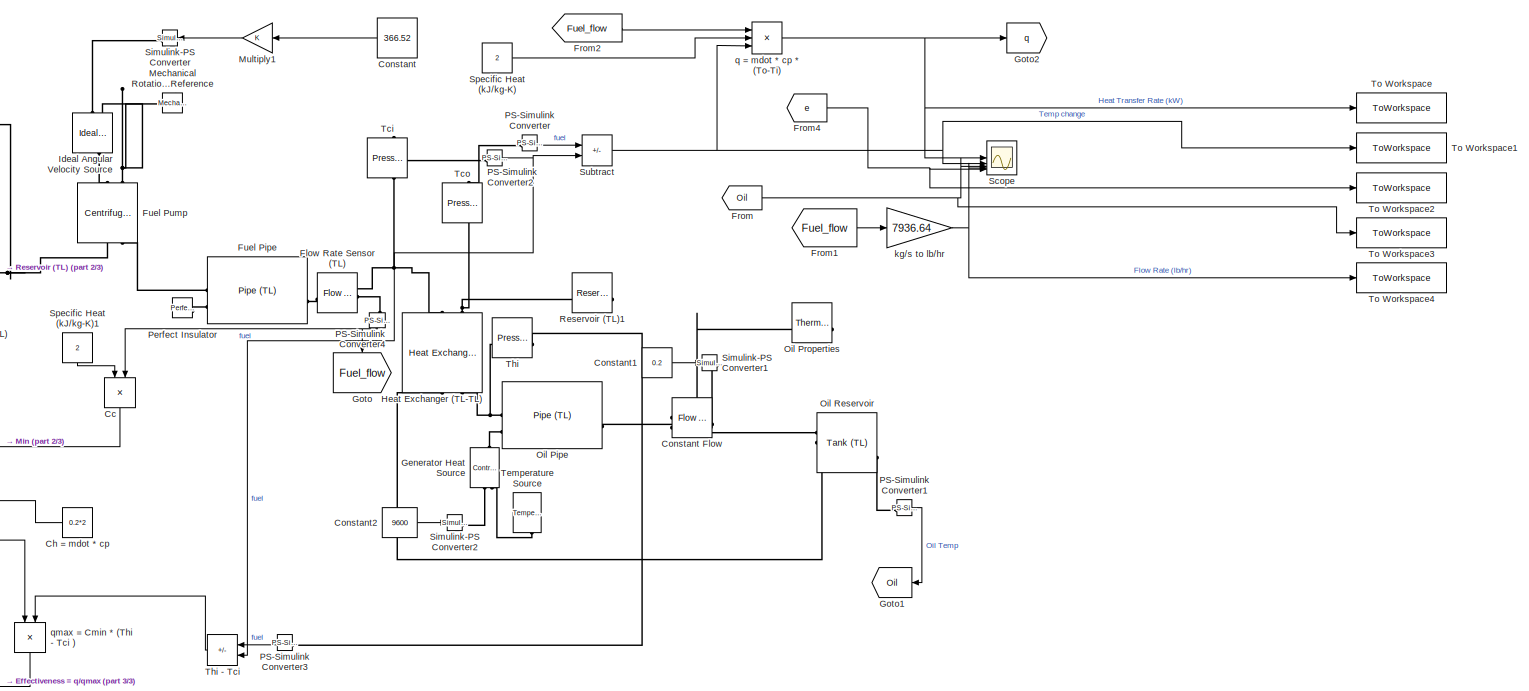
[diagram: root canvas - part 1/3, most of the canvas]
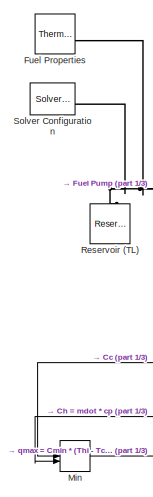
[diagram: root canvas - part 2/3, middle left region]
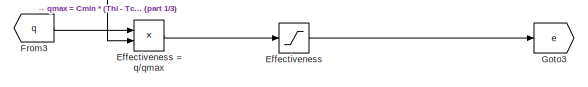
[diagram: root canvas - part 3/3, bottom left region]
MODEL slx_641545bf2c4e
KIND model
CONFIG AbsTol = auto
CONFIG EnableMultiTasking = off
CONFIG FixedStep = auto
CONFIG MaxStep = auto
CONFIG MinStep = auto
CONFIG RelTol = 1e-3
CONFIG SampleTimeConstraint = Unconstrained
CONFIG SolverName = VariableStepAuto
CONFIG StartTime = 0.0
CONFIG StopTime = 10800
BLOCK [Product] Cc
  NameLocation = left
BLOCK [Constant] Ch = mdot * cp
  NameLocation = top
  Value = 0.2*2
BLOCK [Constant] Constant
  NameLocation = top
  Value = 366.52
BLOCK [Reference] Constant Flow  REF=fl_lib/Thermal Liquid/Sources/Flow Rate Source
(TL)
  NameLocation = top
  SourceBlock = fl_lib/Thermal Liquid/Sources/Flow Rate Source\n(TL)
  SourceType = Flow Rate Source\n(TL)
BLOCK [Constant] Constant1
  Value = 0.2
BLOCK [Constant] Constant2
  Value = 9600
BLOCK [Saturate] Effectiveness
  LowerLimit = 0
  UpperLimit = 1
BLOCK [Product] Effectiveness = q//qmax 
  Inputs = */
BLOCK [Reference] Flow Rate Sensor (TL)  REF=fl_lib/Thermal Liquid/Sensors/Flow Rate Sensor
(TL)
  SourceBlock = fl_lib/Thermal Liquid/Sensors/Flow Rate Sensor\n(TL)
  SourceType = Flow Rate Sensor\n(TL)
BLOCK [From] From
  GotoTag = Oil
BLOCK [From] From1
  GotoTag = Fuel_flow
BLOCK [From] From2
  GotoTag = Fuel_flow
BLOCK [From] From3
  GotoTag = q
BLOCK [From] From4
  GotoTag = e
BLOCK [Reference] Fuel Pipe  REF=SimscapeFluids_lib/Thermal Liquid/Pipes & Fittings/Pipe (TL)
  NameLocation = top
  SourceBlock = SimscapeFluids_lib/Thermal Liquid/Pipes & Fittings/Pipe (TL)
  SourceType = Pipe (TL)
BLOCK [Reference] Fuel Properties  REF=SimscapeFluids_lib/Thermal Liquid/Utilities/Thermal Liquid
Properties (TL)
  NameLocation = top
  SourceBlock = SimscapeFluids_lib/Thermal Liquid/Utilities/Thermal Liquid\nProperties (TL)
  SourceType = Thermal Liquid\nProperties (TL)
BLOCK [Reference] Fuel Pump   REF=SimscapeFluids_lib/Thermal Liquid/Pumps & Motors/Centrifugal Pump
(TL)
  NameLocation = right
  SourceBlock = SimscapeFluids_lib/Thermal Liquid/Pumps & Motors/Centrifugal Pump\n(TL)
  SourceType = Centrifugal Pump\n(TL)
BLOCK [Reference] Generator Heat Source  REF=fl_lib/Thermal/Thermal Sources/Controlled Heat Flow
Rate Source
  NameLocation = right
  SourceBlock = fl_lib/Thermal/Thermal Sources/Controlled Heat Flow\nRate Source
  SourceType = Controlled Heat Flow\nRate Source
BLOCK [Goto] Goto
  GotoTag = Fuel_flow
  NameLocation = left
BLOCK [Goto] Goto1
  GotoTag = Oil
  NameLocation = top
BLOCK [Goto] Goto2
  GotoTag = q
BLOCK [Goto] Goto3
  GotoTag = e
BLOCK [Reference] Heat Exchanger (TL-TL)  REF=SimscapeFluids_lib/Heat Exchangers/Thermal Liquid/Heat Exchanger
(TL-TL)
  NameLocation = right
  SourceBlock = SimscapeFluids_lib/Heat Exchangers/Thermal Liquid/Heat Exchanger\n(TL-TL)
  SourceType = Heat Exchanger\n(TL-TL)
BLOCK [Reference] Ideal Angular Velocity Source  REF=fl_lib/Mechanical/Mechanical Sources/Ideal Angular
Velocity Source
  NameLocation = left
  SourceBlock = fl_lib/Mechanical/Mechanical Sources/Ideal Angular\nVelocity Source
  SourceType = Ideal Angular\nVelocity Source
BLOCK [Reference] Mechanical Rotational Reference  REF=fl_lib/Mechanical/Rotational Elements/Mechanical
Rotational Reference
  NameLocation = right
  SourceBlock = fl_lib/Mechanical/Rotational Elements/Mechanical\nRotational Reference
  SourceType = Mechanical\nRotational Reference
BLOCK [MinMax] Min
  Inputs = 2
BLOCK [Gain] Multiply1
  NameLocation = top
BLOCK [Reference] Oil Pipe  REF=SimscapeFluids_lib/Thermal Liquid/Pipes & Fittings/Pipe (TL)
  NameLocation = top
  SourceBlock = SimscapeFluids_lib/Thermal Liquid/Pipes & Fittings/Pipe (TL)
  SourceType = Pipe (TL)
BLOCK [Reference] Oil Properties   REF=SimscapeFluids_lib/Thermal Liquid/Utilities/Thermal Liquid
Properties (TL)
  NameLocation = top
  SourceBlock = SimscapeFluids_lib/Thermal Liquid/Utilities/Thermal Liquid\nProperties (TL)
  SourceType = Thermal Liquid\nProperties (TL)
BLOCK [Reference] Oil Reservoir  REF=SimscapeFluids_lib/Thermal Liquid/Tanks & Accumulators/Tank (TL)
  NameLocation = right
  SourceBlock = SimscapeFluids_lib/Thermal Liquid/Tanks & Accumulators/Tank (TL)
  SourceType = Tank (TL)
BLOCK [Reference] PS-Simulink Converter  REF=nesl_utility/PS-Simulink
Converter
  SourceBlock = nesl_utility/PS-Simulink\nConverter
  SourceType = PS-Simulink\nConverter
BLOCK [Reference] PS-Simulink Converter1  REF=nesl_utility/PS-Simulink
Converter
  SourceBlock = nesl_utility/PS-Simulink\nConverter
  SourceType = PS-Simulink\nConverter
BLOCK [Reference] PS-Simulink Converter2  REF=nesl_utility/PS-Simulink
Converter
  SourceBlock = nesl_utility/PS-Simulink\nConverter
  SourceType = PS-Simulink\nConverter
BLOCK [Reference] PS-Simulink Converter3  REF=nesl_utility/PS-Simulink
Converter
  NameLocation = top
  SourceBlock = nesl_utility/PS-Simulink\nConverter
  SourceType = PS-Simulink\nConverter
BLOCK [Reference] PS-Simulink Converter4  REF=nesl_utility/PS-Simulink
Converter
  NameLocation = left
  SourceBlock = nesl_utility/PS-Simulink\nConverter
  SourceType = PS-Simulink\nConverter
BLOCK [Reference] Perfect Insulator  REF=fl_lib/Thermal/Thermal Elements/Perfect Insulator
  SourceBlock = fl_lib/Thermal/Thermal Elements/Perfect Insulator
  SourceType = Perfect Insulator
BLOCK [Reference] Reservoir (TL)  REF=fl_lib/Thermal Liquid/Elements/Reservoir (TL)
  NameLocation = right
  SourceBlock = fl_lib/Thermal Liquid/Elements/Reservoir (TL)
  SourceType = Reservoir (TL)
BLOCK [Reference] Reservoir (TL)1  REF=fl_lib/Thermal Liquid/Elements/Reservoir (TL)
  NameLocation = top
  SourceBlock = fl_lib/Thermal Liquid/Elements/Reservoir (TL)
  SourceType = Reservoir (TL)
BLOCK [Scope] Scope
  ActiveDisplayYMaximum = 37.123225295399415
  ActiveDisplayYMinimum = -19.375781020772656
  ContainerLayout = {"WindowBounds":[1171,1366,336,759],"gridDimensions":{"w":1,"h":1},"tileCount":1,"tileCoverage":1,"columnWeights":1,"rowWeights":1,"tileOccupancy":{"children":[{"id":"/Scope1"},{"id":"/Scope"}]}}
  Floating = off
  GraphicalSettings = {"Style":{"BackgroundColor":[0.12941176470588237,0.12941176470588237,0.12941176470588237],"AxesColor":[0.07058823529411765,0.07058823529411765,0.07058823529411765],"LabelsColor":[0.8509803921568627,0.8509803921568627,0.8509803921568627],"PreserveColors":false,"Visible":[true,true,true,true,true],"LineStyle":["-","-","-","-","-"],"LineWidth":[1.5,1.5,1.5,1.5,1.5],"BarWidth":[0.9,0.9,0.9,0.9,0.9],"L...<+2517ch>
  MultipleDisplayCache = [{"MaxYLimMag":14835.183964383157,"MaxYLimReal":37.123225295399415,"MinYLimMag":0,"MinYLimReal":-19.375781020772656,"PlotAsMagnitudePhase":false,"ShowGrid":true,"ShowLegend":true,"Title":"%<SignalLabel>","YLabel":""}]
  NumInputPorts = 5
  ShowLegend = on
  Visible = on
  WasSavedAsWebScope = on
  WindowPosition = [1171.000000,64.000000,342.000000,768.000000,]
BLOCK [Reference] Simulink-PS Converter  REF=nesl_utility/Simulink-PS
Converter
  NameLocation = top
  SourceBlock = nesl_utility/Simulink-PS\nConverter
  SourceType = Simulink-PS\nConverter
BLOCK [Reference] Simulink-PS Converter1  REF=nesl_utility/Simulink-PS
Converter
  SourceBlock = nesl_utility/Simulink-PS\nConverter
  SourceType = Simulink-PS\nConverter
BLOCK [Reference] Simulink-PS Converter2  REF=nesl_utility/Simulink-PS
Converter
  SourceBlock = nesl_utility/Simulink-PS\nConverter
  SourceType = Simulink-PS\nConverter
BLOCK [Reference] Solver Configuration  REF=nesl_utility/Solver
Configuration
  SourceBlock = nesl_utility/Solver\nConfiguration
  SourceType = Solver\nConfiguration
BLOCK [Constant] Specific Heat (kJ//kg-K)
  Value = 2
BLOCK [Constant] Specific Heat (kJ//kg-K)1
  NameLocation = left
  Value = 2
BLOCK [Sum] Subtract
  IconShape = rectangular
  Inputs = +-
BLOCK [Reference] Tci  REF=fl_lib/Thermal Liquid/Sensors/Pressure &
Temperature Sensor
(TL)
  NameLocation = top
  SourceBlock = fl_lib/Thermal Liquid/Sensors/Pressure &\nTemperature Sensor\n(TL)
  SourceType = Pressure &\nTemperature Sensor\n(TL)
BLOCK [Reference] Tco  REF=fl_lib/Thermal Liquid/Sensors/Pressure &
Temperature Sensor
(TL)
  NameLocation = left
  SourceBlock = fl_lib/Thermal Liquid/Sensors/Pressure &\nTemperature Sensor\n(TL)
  SourceType = Pressure &\nTemperature Sensor\n(TL)
BLOCK [Reference] Temperature Source  REF=fl_lib/Thermal/Thermal Sources/Temperature Source
  NameLocation = left
  SourceBlock = fl_lib/Thermal/Thermal Sources/Temperature Source
  SourceType = Temperature Source
BLOCK [Reference] Thi  REF=fl_lib/Thermal Liquid/Sensors/Pressure &
Temperature Sensor
(TL)
  NameLocation = right
  SourceBlock = fl_lib/Thermal Liquid/Sensors/Pressure &\nTemperature Sensor\n(TL)
  SourceType = Pressure &\nTemperature Sensor\n(TL)
BLOCK [Sum] Thi - Tci 
  IconShape = rectangular
  Inputs = +-
  NameLocation = top
BLOCK [ToWorkspace] To Workspace
  FixptAsFi = on
  MaxDataPoints = 1
  SampleTime = -1
  VariableName = q
BLOCK [ToWorkspace] To Workspace1
  FixptAsFi = on
  MaxDataPoints = 1
  SampleTime = -1
  VariableName = Tchng
BLOCK [ToWorkspace] To Workspace2
  FixptAsFi = on
  MaxDataPoints = 1
  SampleTime = -1
  VariableName = e
BLOCK [ToWorkspace] To Workspace3
  FixptAsFi = on
  MaxDataPoints = 1
  SampleTime = -1
  VariableName = oil
BLOCK [ToWorkspace] To Workspace4
  FixptAsFi = on
  MaxDataPoints = 1
  SampleTime = -1
  VariableName = flow
BLOCK [Gain] kg//s to lb//hr
  Gain = 7936.64
BLOCK [Product] q = mdot * cp * (To-Ti)
  Inputs = 3
  NameLocation = top
BLOCK [Product] qmax = Cmin * (Thi - Tci ) 
  NameLocation = right
LINE Cc:1 -> Min:1
LINE Ch = mdot * cp:1 -> Min:2
LINE Constant1:1 -> Simulink-PS Converter1:1
LINE Constant2:1 -> Simulink-PS Converter2:1
LINE Constant:1 -> Multiply1:1
LINE Effectiveness = q//qmax :1 -> Effectiveness:1
LINE Effectiveness:1 -> Goto3:1
LINE From1:1 -> kg//s to lb//hr:1
LINE From2:1 -> q = mdot * cp * (To-Ti):1
LINE From3:1 -> Effectiveness = q//qmax :1
NET From4:1 -> Scope:5, To Workspace2:1
NET From:1 -> Scope:3, To Workspace3:1
LINE Min:1 -> qmax = Cmin * (Thi - Tci ) :1
LINE Multiply1:1 -> Simulink-PS Converter:1
LINE PS-Simulink Converter1:1 -> Goto1:1
NET PS-Simulink Converter2:1 -> Subtract:2, Thi - Tci :2
LINE PS-Simulink Converter3:1 -> Thi - Tci :1
NET PS-Simulink Converter4:1 -> Cc:2, Goto:1
LINE PS-Simulink Converter:1 -> Subtract:1
LINE Specific Heat (kJ//kg-K)1:1 -> Cc:1
LINE Specific Heat (kJ//kg-K):1 -> q = mdot * cp * (To-Ti):2
NET Subtract:1 -> Scope:2, To Workspace1:1, q = mdot * cp * (To-Ti):3
LINE Thi - Tci :1 -> qmax = Cmin * (Thi - Tci ) :2
NET kg//s to lb//hr:1 -> Scope:4, To Workspace4:1
NET q = mdot * cp * (To-Ti):1 -> Goto2:1, Scope:1, To Workspace:1
LINE qmax = Cmin * (Thi - Tci ) :1 -> Effectiveness = q//qmax :2
PNET net1: Constant Flow:LConn1 -- Oil Properties :RConn1 -- Oil Reservoir:LConn1
PLINE Constant Flow:LConn2 -- Simulink-PS Converter1:RConn1
PLINE Constant Flow:RConn1 -- Oil Pipe:RConn1
PLINE Flow Rate Sensor (TL):LConn1 -- Fuel Pipe:RConn1
PNET net2: Flow Rate Sensor (TL):RConn1 -- Heat Exchanger (TL-TL):RConn1 -- Tci:LConn1
PLINE Flow Rate Sensor (TL):RConn2 -- PS-Simulink Converter4:LConn1
PLINE Fuel Pipe:LConn1 -- Fuel Pump :LConn2
PLINE Fuel Pipe:LConn2 -- Perfect Insulator:LConn1
PNET net3: Fuel Properties:RConn1 -- Fuel Pump :LConn1 -- Reservoir (TL):LConn1 -- Solver Configuration:RConn1
PLINE Fuel Pump :RConn1 -- Ideal Angular Velocity Source:LConn1
PNET net4: Fuel Pump :RConn2 -- Ideal Angular Velocity Source:RConn2 -- Mechanical Rotational Reference:LConn1
PLINE Generator Heat Source:LConn1 -- Oil Pipe:LConn2
PLINE Generator Heat Source:RConn1 -- Simulink-PS Converter2:RConn1
PLINE Generator Heat Source:RConn2 -- Temperature Source:LConn1
PLINE Heat Exchanger (TL-TL):LConn1 -- Oil Reservoir:LConn2
PNET net5: Heat Exchanger (TL-TL):LConn2 -- Oil Pipe:LConn1 -- Thi:LConn1
PNET net6: Heat Exchanger (TL-TL):RConn2 -- Reservoir (TL)1:LConn1 -- Tco:LConn1
PLINE Ideal Angular Velocity Source:RConn1 -- Simulink-PS Converter:RConn1
PLINE Oil Reservoir:RConn2 -- PS-Simulink Converter1:LConn1
PLINE PS-Simulink Converter2:LConn1 -- Tci:RConn1
PLINE PS-Simulink Converter3:LConn1 -- Thi:RConn1
PLINE PS-Simulink Converter:LConn1 -- Tco:RConn1
note: NET lines group one-source signal fan-out (src -> all destinations, sorted); 1:1 wires keep LINE; PNET lines group multi-terminal physical nets as a canonical sorted terminal list (undirected conserving connections); 2-terminal nets keep the pairwise PLINE form
